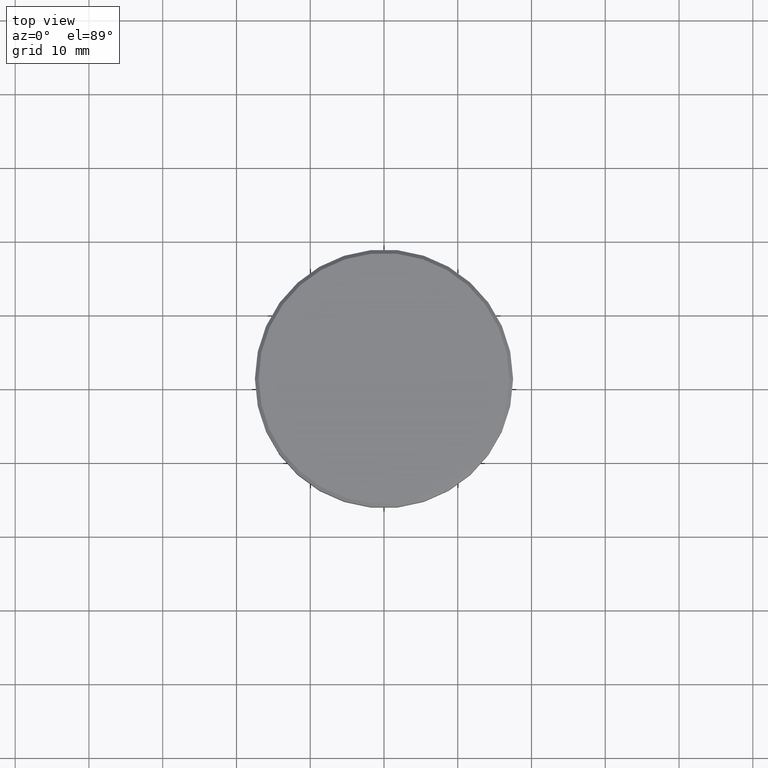
[diagram: clean part render]
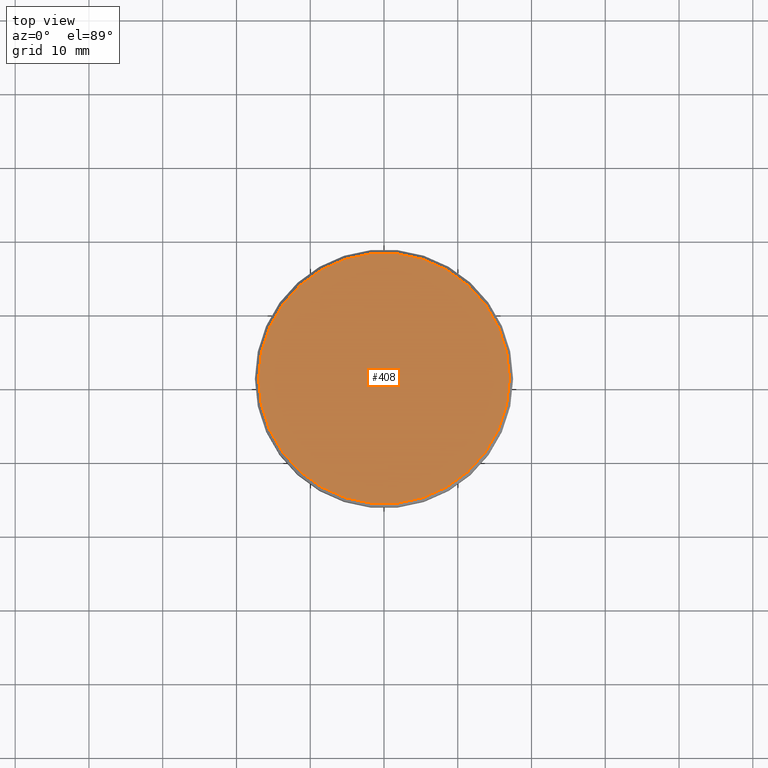
[diagram: same view with one face highlighted and labeled with its STEP entity id]
A machine part, top view. The second image highlights one B-rep face of the part: STEP entity #408.
In plain terms, the highlighted planar face has unit normal (0, -0, 1).
Its self-contained STEP definition (entity closure, byte-faithful):
#30 = DIRECTION ( 'NONE',  ( 1.000000000000000000, 0.000000000000000000, 0.000000000000000000 ) ) ;
#93 = CARTESIAN_POINT ( 'NONE',  ( 0.000000000000000000, 0.000000000000000000, 0.000000000000000000 ) ) ;
#109 = DIRECTION ( 'NONE',  ( 1.000000000000000000, 0.000000000000000000, 0.000000000000000000 ) ) ;
#117 = CARTESIAN_POINT ( 'NONE',  ( 0.000000000000000000, 0.000000000000000000, 0.000000000000000000 ) ) ;
#126 = AXIS2_PLACEMENT_3D ( 'NONE', #117, #1109, #751 ) ;
#133 = ORIENTED_EDGE ( 'NONE', *, *, #200, .T. ) ;
#134 = CARTESIAN_POINT ( 'NONE',  ( 0.000000000000000000, 0.000000000000000000, 0.000000000000000000 ) ) ;
#200 = EDGE_CURVE ( 'NONE', #797, #1012, #820, .T. ) ;
#272 = CARTESIAN_POINT ( 'NONE',  ( -17.00000000000002842, 0.000000000000000000, 0.000000000000000000 ) ) ;
#283 = DIRECTION ( 'NONE',  ( -0.000000000000000000, -0.000000000000000000, 1.000000000000000000 ) ) ;
#407 = CIRCLE ( 'NONE', #126, 17.00000000000002842 ) ;
#408 = ADVANCED_FACE ( 'NONE', ( #494 ), #1035, .T. ) ;
#473 = CARTESIAN_POINT ( 'NONE',  ( 17.00000000000002842, 2.112515728529186039E-15, 0.000000000000000000 ) ) ;
#474 = AXIS2_PLACEMENT_3D ( 'NONE', #134, #489, #30 ) ;
#489 = DIRECTION ( 'NONE',  ( 0.000000000000000000, -0.000000000000000000, 1.000000000000000000 ) ) ;
#493 = EDGE_LOOP ( 'NONE', ( #848, #133 ) ) ;
#494 = FACE_OUTER_BOUND ( 'NONE', #493, .T. ) ;
#744 = AXIS2_PLACEMENT_3D ( 'NONE', #93, #283, #109 ) ;
#751 = DIRECTION ( 'NONE',  ( 1.000000000000000000, 0.000000000000000000, 0.000000000000000000 ) ) ;
#797 = VERTEX_POINT ( 'NONE', #473 ) ;
#820 = CIRCLE ( 'NONE', #744, 17.00000000000002842 ) ;
#848 = ORIENTED_EDGE ( 'NONE', *, *, #1156, .T. ) ;
#1012 = VERTEX_POINT ( 'NONE', #272 ) ;
#1035 = PLANE ( 'NONE',  #474 ) ;
#1109 = DIRECTION ( 'NONE',  ( -0.000000000000000000, -0.000000000000000000, 1.000000000000000000 ) ) ;
#1156 = EDGE_CURVE ( 'NONE', #1012, #797, #407, .T. ) ;